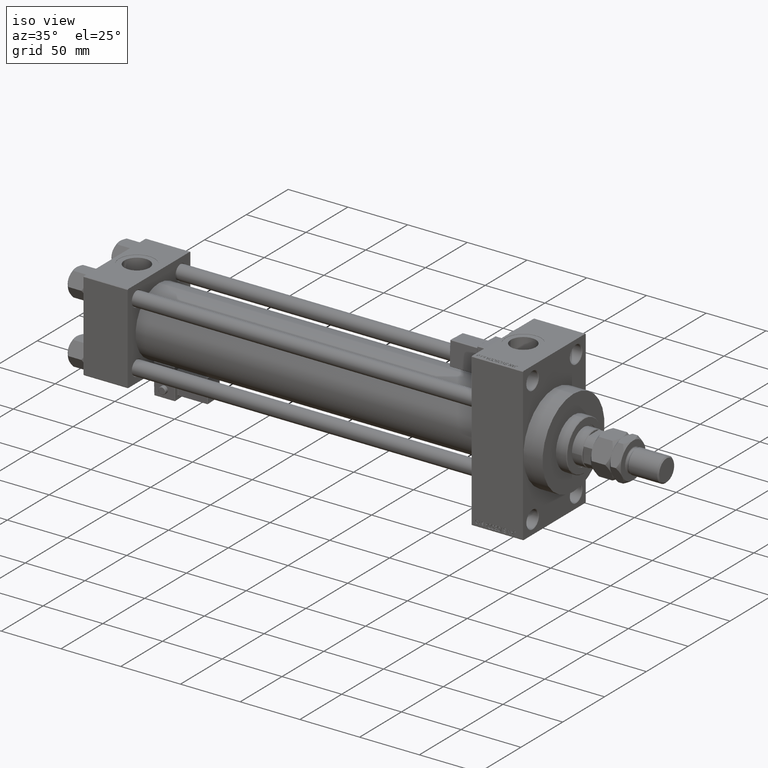
[diagram: clean part render]
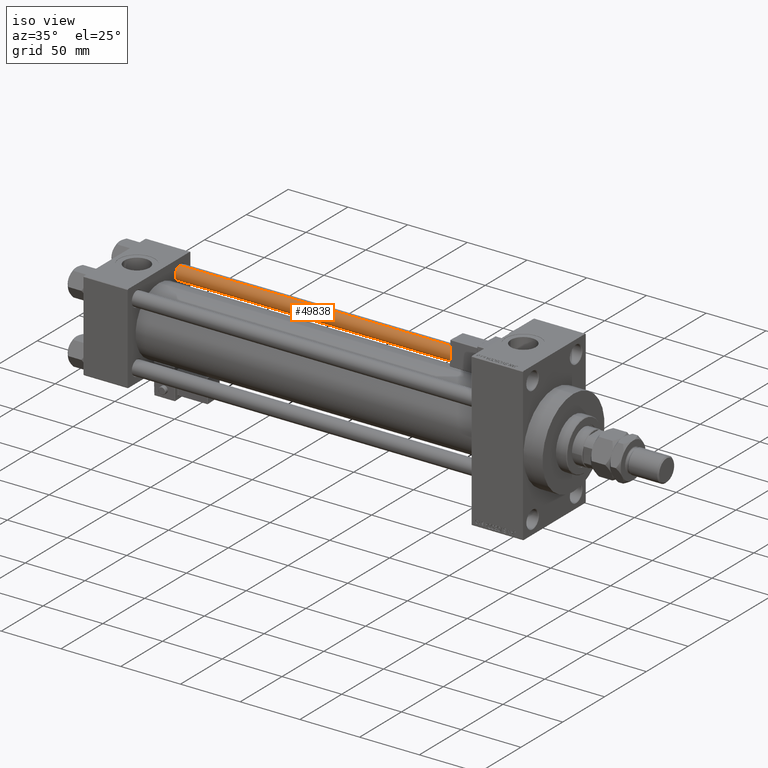
[diagram: same view with one face highlighted and labeled with its STEP entity id]
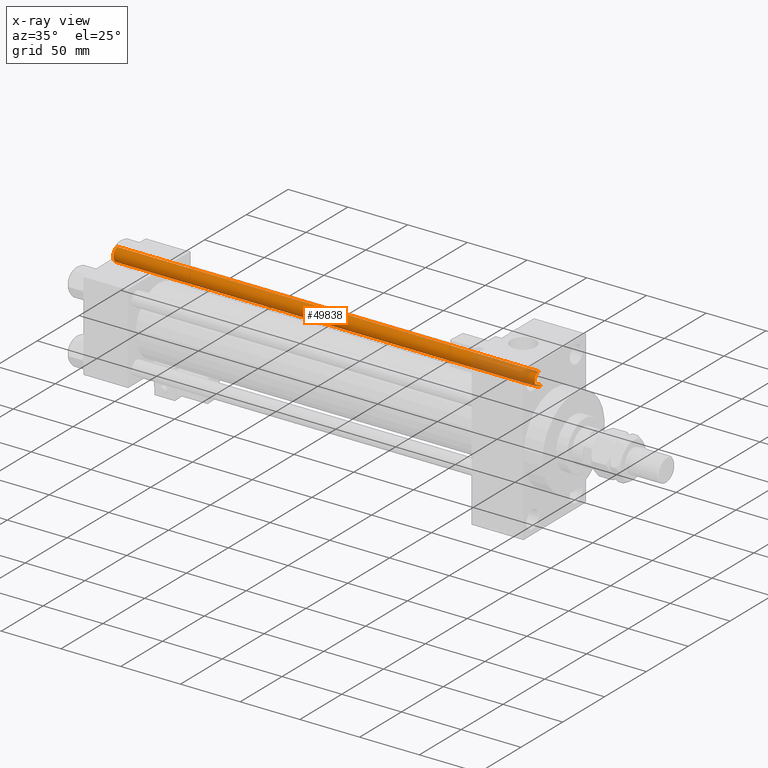
[diagram: x-ray of the same camera — body ghosted, the highlighted face saturated]
A machine part, iso view. The second image highlights one B-rep face of the part: STEP entity #49838.
The next image is the same camera in x-ray: the body ghosted, the highlighted face saturated — about 14% of this face is hidden behind the body in this view.
In plain terms, the highlighted cylindrical surface (edge-blend (fillet) strip) has radius 6 mm, axis along (-1, -0, 0).
Its self-contained STEP definition (entity closure, byte-faithful):
#1512 = FACE_OUTER_BOUND ( 'NONE', #42122, .T. ) ;
#2427 = AXIS2_PLACEMENT_3D ( 'NONE', #37226, #14373, #16583 ) ;
#3487 = CARTESIAN_POINT ( 'NONE',  ( 0.000000000000000000, 0.000000000000000000, 353.5000000000000000 ) ) ;
#3685 = LINE ( 'NONE', #45272, #7453 ) ;
#5558 = EDGE_CURVE ( 'NONE', #38381, #28534, #3685, .T. ) ;
#7453 = VECTOR ( 'NONE', #52556, 1000.000000000000000 ) ;
#7954 = EDGE_CURVE ( 'NONE', #28534, #34007, #8389, .T. ) ;
#8309 = DIRECTION ( 'NONE',  ( 0.000000000000000000, 0.000000000000000000, -1.000000000000000000 ) ) ;
#8389 = CIRCLE ( 'NONE', #2427, 6.000000000000000888 ) ;
#8534 = CARTESIAN_POINT ( 'NONE',  ( 6.000000000000000888, 7.347880794884120722E-16, 354.0000000000000000 ) ) ;
#9866 = EDGE_CURVE ( 'NONE', #10469, #38381, #23076, .T. ) ;
#10469 = VERTEX_POINT ( 'NONE', #41229 ) ;
#10649 = CYLINDRICAL_SURFACE ( 'NONE', #18626, 6.000000000000000888 ) ;
#14373 = DIRECTION ( 'NONE',  ( -0.000000000000000000, -0.000000000000000000, 1.000000000000000000 ) ) ;
#16583 = DIRECTION ( 'NONE',  ( 1.000000000000000000, 0.000000000000000000, 0.000000000000000000 ) ) ;
#18626 = AXIS2_PLACEMENT_3D ( 'NONE', #29965, #42573, #26741 ) ;
#19869 = CARTESIAN_POINT ( 'NONE',  ( -6.000000000000000888, 0.000000000000000000, 353.5000000000000000 ) ) ;
#20966 = ORIENTED_EDGE ( 'NONE', *, *, #7954, .T. ) ;
#21688 = DIRECTION ( 'NONE',  ( -0.000000000000000000, -0.000000000000000000, -1.000000000000000000 ) ) ;
#22203 = AXIS2_PLACEMENT_3D ( 'NONE', #3487, #8309, #23891 ) ;
#23076 = CIRCLE ( 'NONE', #22203, 6.000000000000000888 ) ;
#23891 = DIRECTION ( 'NONE',  ( 1.000000000000000000, 0.000000000000000000, 0.000000000000000000 ) ) ;
#25226 = VECTOR ( 'NONE', #21688, 1000.000000000000000 ) ;
#26741 = DIRECTION ( 'NONE',  ( -1.000000000000000000, 0.000000000000000000, 0.000000000000000000 ) ) ;
#28534 = VERTEX_POINT ( 'NONE', #31397 ) ;
#29247 = ORIENTED_EDGE ( 'NONE', *, *, #5558, .T. ) ;
#29965 = CARTESIAN_POINT ( 'NONE',  ( 0.000000000000000000, 0.000000000000000000, 354.0000000000000000 ) ) ;
#31397 = CARTESIAN_POINT ( 'NONE',  ( -6.000000000000000888, 0.000000000000000000, 0.5000000000000559552 ) ) ;
#34007 = VERTEX_POINT ( 'NONE', #36598 ) ;
#36598 = CARTESIAN_POINT ( 'NONE',  ( 6.000000000000000888, 7.347880794884120722E-16, 0.5000000000000559552 ) ) ;
#37226 = CARTESIAN_POINT ( 'NONE',  ( 0.000000000000000000, 0.000000000000000000, 0.5000000000000559552 ) ) ;
#37500 = LINE ( 'NONE', #8534, #25226 ) ;
#38381 = VERTEX_POINT ( 'NONE', #19869 ) ;
#41229 = CARTESIAN_POINT ( 'NONE',  ( 6.000000000000000888, 7.347880794884120722E-16, 353.5000000000000000 ) ) ;
#42122 = EDGE_LOOP ( 'NONE', ( #51027, #48464, #29247, #20966 ) ) ;
#42573 = DIRECTION ( 'NONE',  ( -0.000000000000000000, -0.000000000000000000, -1.000000000000000000 ) ) ;
#45272 = CARTESIAN_POINT ( 'NONE',  ( -6.000000000000000888, 0.000000000000000000, 354.0000000000000000 ) ) ;
#48464 = ORIENTED_EDGE ( 'NONE', *, *, #9866, .T. ) ;
#49838 = ADVANCED_FACE ( 'NONE', ( #1512 ), #10649, .T. ) ;
#51027 = ORIENTED_EDGE ( 'NONE', *, *, #51428, .F. ) ;
#51428 = EDGE_CURVE ( 'NONE', #10469, #34007, #37500, .T. ) ;
#52556 = DIRECTION ( 'NONE',  ( -0.000000000000000000, -0.000000000000000000, -1.000000000000000000 ) ) ;